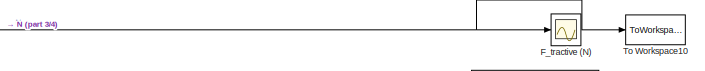
[diagram: root canvas - part 1/4, top right region]
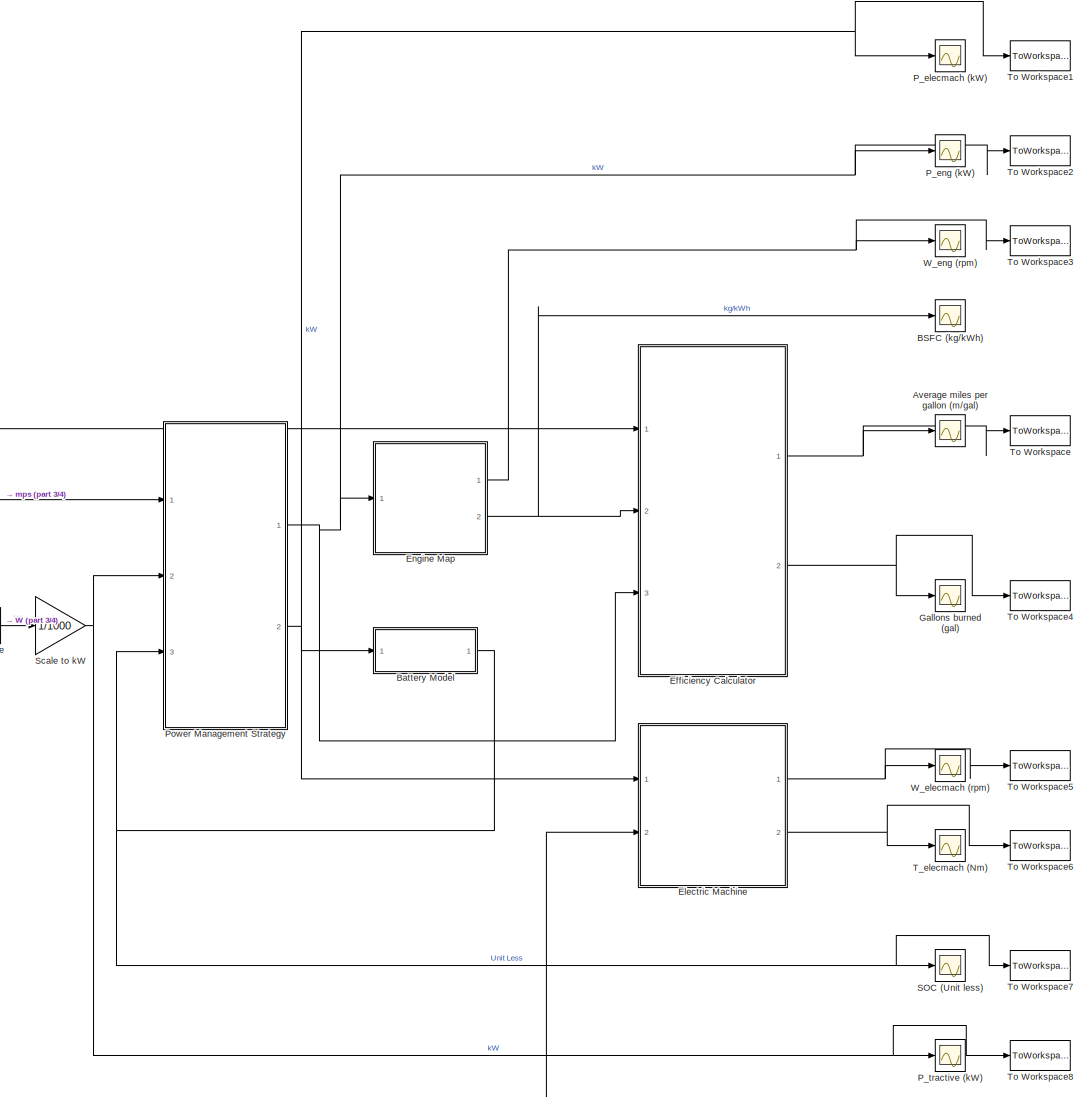
[diagram: root canvas - part 2/4, right side, full height]
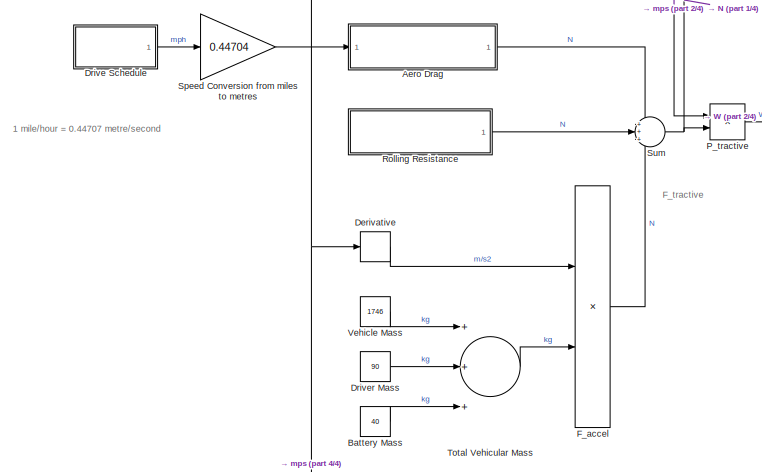
[diagram: root canvas - part 3/4, middle left region]
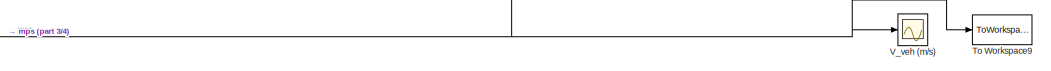
[diagram: root canvas - part 4/4, bottom right region]
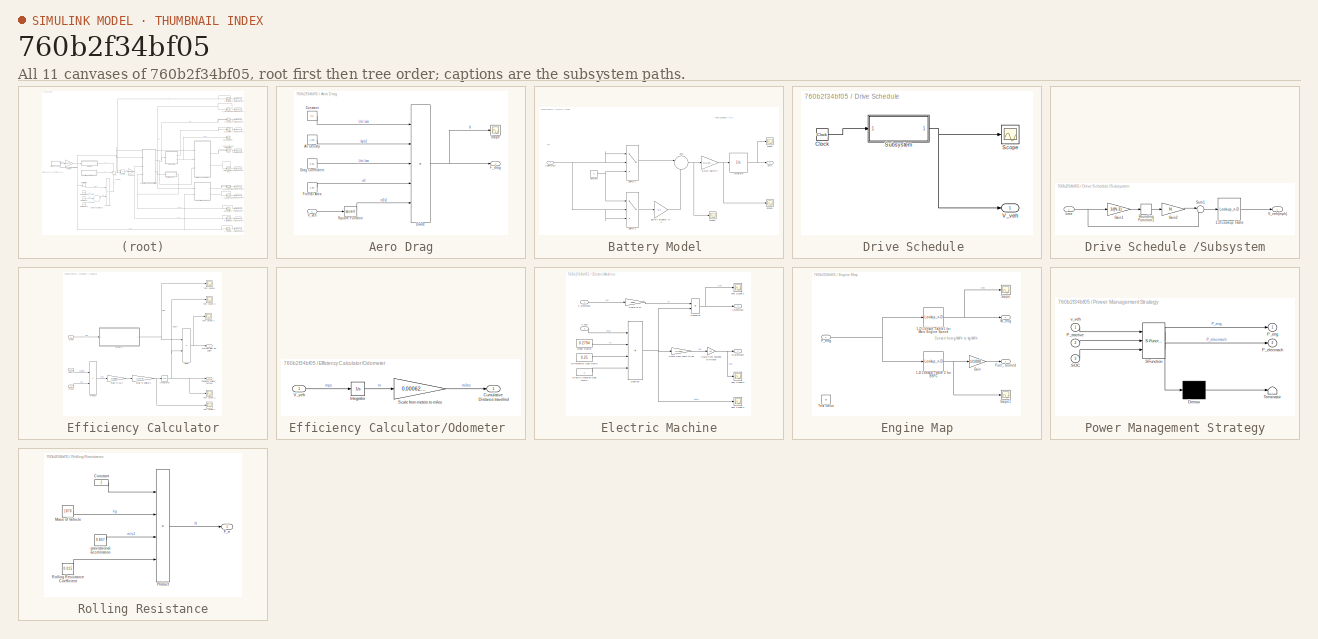
[diagram: thumbnail index - all 11 canvases of the model, root first then tree order]
MODEL slx_760b2f34bf05
KIND model
CONFIG AbsTol = auto
CONFIG FixedStep = 0.1
CONFIG MaxStep = auto
CONFIG MinStep = auto
CONFIG RelTol = 1e-3
CONFIG SampleTimeConstraint = Unconstrained
CONFIG Solver = ode1
CONFIG SolverMode = Auto
CONFIG SolverName = ode1
CONFIG StartTime = 0.0
CONFIG StopTime = 1200
BLOCK [SubSystem] Aero Drag
  Ports = [1, 1]
  RequestExecContextInheritance = off
  Variant = off
BLOCK [Constant] Aero Drag/Air Density
  Value = 1.225
BLOCK [Constant] Aero Drag/Constant
  Value = 0.5
BLOCK [Product] Aero Drag/Divide
  InputSameDT = off
  Inputs = *****
  OutDataTypeStr = Inherit: Inherit via internal rule
  Ports = [5, 1]
  RndMeth = Floor
  SaturateOnIntegerOverflow = off
BLOCK [Constant] Aero Drag/Drag Coefficient
  Value = 0.35
BLOCK [Outport] Aero Drag/F_drag 
  IconDisplay = Port number
BLOCK [Constant] Aero Drag/Frontal Area
  Value = 1.93
BLOCK [Scope] Aero Drag/Scope
  Ports = [1]
  ScopeSpecificationString = Simulink.scopes.TimeScopeBlockCfg('CurrentConfiguration', extmgr.ConfigurationSet(extmgr.Configuration('Core','General UI',true),extmgr.Configuration('Core','Source UI',true),extmgr.Configuration('Sources','WiredSimulink',true,'DataLoggingVariableName','ScopeData1'),extmgr.Configuration('Visuals','Time Domain',true,'SerializedDisplays',{struct('MinYLimReal','-1.85654','MaxYLimReal','16.70882','YLa...<+1398ch>
BLOCK [Math] Aero Drag/Square Function
  Operator = square
  Ports = [1, 1]
BLOCK [Inport] Aero Drag/V_veh
  IconDisplay = Port number
BLOCK [Scope] Average miles per gallon (m//gal)
  Ports = [1]
  ScopeSpecificationString = Simulink.scopes.TimeScopeBlockCfg('CurrentConfiguration', extmgr.ConfigurationSet(extmgr.Configuration('Core','General UI',true),extmgr.Configuration('Core','Source UI',true),extmgr.Configuration('Sources','WiredSimulink',true,'DataLoggingVariableName','ScopeData1','DataLoggingSaveFormat','Structure','DataLoggingDecimation','1'),extmgr.Configuration('Visuals','Time Domain',true,'SerializedDisplays...<+1502ch>
BLOCK [Scope] BSFC (kg//kWh)
  Ports = [1]
  ScopeSpecificationString = Simulink.scopes.TimeScopeBlockCfg('CurrentConfiguration', extmgr.ConfigurationSet(extmgr.Configuration('Core','General UI',true),extmgr.Configuration('Core','Source UI',true),extmgr.Configuration('Sources','WiredSimulink',true,'DataLoggingVariableName','ScopeData4'),extmgr.Configuration('Visuals','Time Domain',true,'SerializedDisplays',{struct('MinYLimReal','0.20688','MaxYLimReal','0.68812','YLabe...<+1415ch>
BLOCK [Constant] Battery Mass
  Value = 40
BLOCK [SubSystem] Battery Model 
  Ports = [1, 1]
  RequestExecContextInheritance = off
  Variant = off
BLOCK [Gain] Battery Model /Battery Efficiency (0 - 1)
  Gain = 0.7
  OutDataTypeStr = Inherit: Inherit via internal rule
  ParamDataTypeStr = Inherit: Inherit via internal rule
  SaturateOnIntegerOverflow = off
BLOCK [Constant] Battery Model /Constant
  Value = 0
BLOCK [Gain] Battery Model /E_max (Battery)
  Gain = 1/(1.8*3600)
  OutDataTypeStr = Inherit: Inherit via internal rule
  ParamDataTypeStr = Inherit: Inherit via internal rule
  SaturateOnIntegerOverflow = off
BLOCK [Integrator] Battery Model /Integrator
  InitialCondition = 0.6
  Ports = [1, 1]
BLOCK [Inport] Battery Model /P_elecmach
  IconDisplay = Port number
BLOCK [Outport] Battery Model /SOC
  IconDisplay = Port number
BLOCK [Scope] Battery Model /Scope
  Ports = [1]
  ScopeSpecificationString = Simulink.scopes.TimeScopeBlockCfg('CurrentConfiguration', extmgr.ConfigurationSet(extmgr.Configuration('Core','General UI',true),extmgr.Configuration('Core','Source UI',true),extmgr.Configuration('Sources','WiredSimulink',true,'DataLoggingVariableName','ScopeData2','DataLoggingLimitDataPoints',true,'DataLoggingSaveFormat','Array','DataLoggingDecimation','1','DataLoggingDecimateData',true),extmgr.C...<+1519ch>
BLOCK [Scope] Battery Model /Scope1
  Ports = [1]
  ScopeSpecificationString = Simulink.scopes.TimeScopeBlockCfg('CurrentConfiguration', extmgr.ConfigurationSet(extmgr.Configuration('Core','General UI',true),extmgr.Configuration('Core','Source UI',true),extmgr.Configuration('Sources','WiredSimulink',true,'DataLoggingVariableName','ScopeData4','DataLoggingLimitDataPoints',true,'DataLoggingSaveFormat','Array','DataLoggingDecimation','1','DataLoggingDecimateData',true),extmgr.C...<+1529ch>
BLOCK [Scope] Battery Model /Scope2
  Ports = [1]
  ScopeSpecificationString = Simulink.scopes.TimeScopeBlockCfg('CurrentConfiguration', extmgr.ConfigurationSet(extmgr.Configuration('Core','General UI',true),extmgr.Configuration('Core','Source UI',true),extmgr.Configuration('Sources','WiredSimulink',true,'DataLoggingVariableName','ScopeData1','DataLoggingLimitDataPoints',true,'DataLoggingSaveFormat','Array','DataLoggingDecimation','1','DataLoggingDecimateData',true),extmgr.C...<+1520ch>
BLOCK [Sum] Battery Model /Sum
  IconShape = round
  InputSameDT = off
  Inputs = |--
  OutDataTypeStr = Inherit: Inherit via internal rule
  Ports = [2, 1]
  SaturateOnIntegerOverflow = off
BLOCK [Switch] Battery Model /Switch 1
  Criteria = u2 > Threshold
  InputSameDT = off
  SaturateOnIntegerOverflow = off
BLOCK [Switch] Battery Model /Switch 2
  Criteria = u2 > Threshold
  InputSameDT = off
  SaturateOnIntegerOverflow = off
BLOCK [Derivative] Derivative
BLOCK [SubSystem] Drive Schedule 
  Ports = [0, 1]
  RequestExecContextInheritance = off
  Variant = off
BLOCK [Clock] Drive Schedule /Clock
BLOCK [Scope] Drive Schedule /Scope
  Ports = [1]
  ScopeSpecificationString = Simulink.scopes.TimeScopeBlockCfg('CurrentConfiguration', extmgr.ConfigurationSet(extmgr.Configuration('Core','General UI',true),extmgr.Configuration('Core','Source UI',true),extmgr.Configuration('Sources','WiredSimulink',true),extmgr.Configuration('Visuals','Time Domain',true,'SerializedDisplays',{struct('MinYLimReal','-10.0375','MaxYLimReal','90.3375','YLabelReal','','MinYLimMag','0.00000','MaxY...<+1381ch>
BLOCK [SubSystem] Drive Schedule /Subsystem
  Ports = [1, 1]
  RequestExecContextInheritance = off
  Variant = off
BLOCK [Lookup_n-D] Drive Schedule /Subsystem/1-D Lookup Table
  BreakpointsForDimension1 = schedule(:,1)
  InternalRulePriority = Speed
  NumberOfTableDimensions = 1
  Ports = [1, 1]
  RndMeth = Simplest
  Table = schedule(:,2)
BLOCK [Gain] Drive Schedule /Subsystem/Gain1
  Gain = 1/(N-1)
  OutDataTypeStr = Inherit: Inherit via internal rule
  ParamDataTypeStr = Inherit: Inherit via internal rule
  SaturateOnIntegerOverflow = off
BLOCK [Gain] Drive Schedule /Subsystem/Gain2
  Gain = N
  OutDataTypeStr = Inherit: Inherit via internal rule
  ParamDataTypeStr = Inherit: Inherit via internal rule
  SaturateOnIntegerOverflow = off
BLOCK [Rounding] Drive Schedule /Subsystem/Rounding Function1
BLOCK [Sum] Drive Schedule /Subsystem/Sum1
  IconShape = round
  InputSameDT = off
  Inputs = |-+
  OutDataTypeStr = Inherit: Inherit via internal rule
  Ports = [2, 1]
  SaturateOnIntegerOverflow = off
BLOCK [Outport] Drive Schedule /Subsystem/V_veh(mph)
  IconDisplay = Port number
BLOCK [Inport] Drive Schedule /Subsystem/time
  IconDisplay = Port number
BLOCK [Outport] Drive Schedule /V_veh 
  IconDisplay = Port number
BLOCK [Constant] Driver Mass
  Value = 90
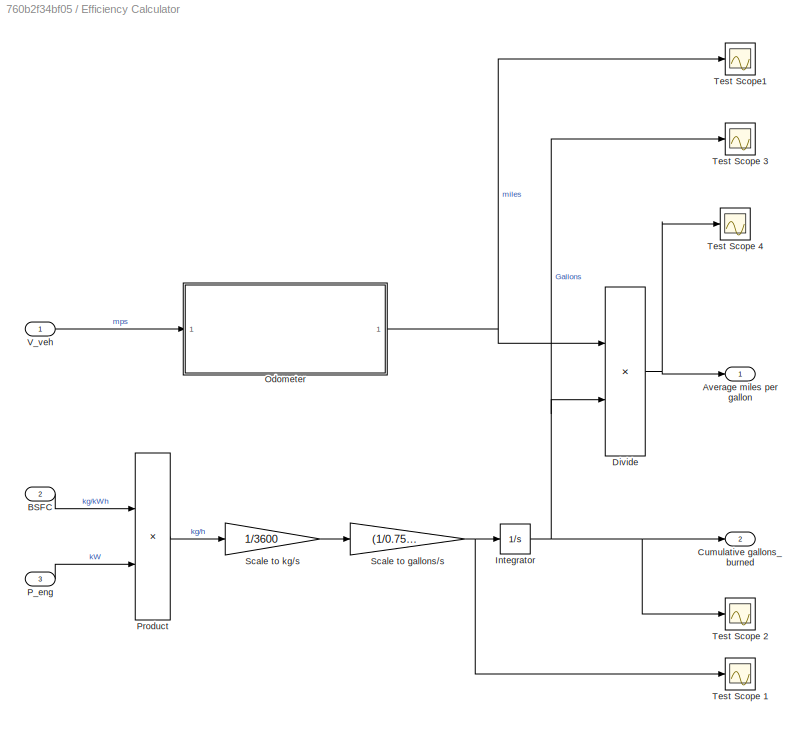
BLOCK [SubSystem] Efficiency Calculator
  Ports = [3, 2]
  RequestExecContextInheritance = off
  Variant = off
BLOCK [Outport] Efficiency Calculator/Average miles per gallon
  IconDisplay = Port number
BLOCK [Inport] Efficiency Calculator/BSFC
  IconDisplay = Port number
  Port = 2
BLOCK [Outport] Efficiency Calculator/Cumulative gallons_burned
  IconDisplay = Port number
  Port = 2
BLOCK [Product] Efficiency Calculator/Divide
  InputSameDT = off
  Inputs = */
  OutDataTypeStr = Inherit: Inherit via internal rule
  Ports = [2, 1]
  RndMeth = Floor
  SaturateOnIntegerOverflow = off
BLOCK [Integrator] Efficiency Calculator/Integrator
  InitialCondition = 0.001
  Ports = [1, 1]
BLOCK [SubSystem] Efficiency Calculator/Odometer 
  Ports = [1, 1]
  RequestExecContextInheritance = off
  ShowPortLabels = SignalName
  Variant = off
BLOCK [Outport] Efficiency Calculator/Odometer /Cumulative Distance travelled
  IconDisplay = Port number
BLOCK [Integrator] Efficiency Calculator/Odometer /Integrator
  InitialCondition = 0.001
  Ports = [1, 1]
BLOCK [Gain] Efficiency Calculator/Odometer /Scale from meters to miles
  Gain = 0.00062137
  OutDataTypeStr = Inherit: Inherit via internal rule
  ParamDataTypeStr = Inherit: Inherit via internal rule
  SaturateOnIntegerOverflow = off
BLOCK [Inport] Efficiency Calculator/Odometer /V_veh
  IconDisplay = Port number
BLOCK [Inport] Efficiency Calculator/P_eng 
  IconDisplay = Port number
  Port = 3
BLOCK [Product] Efficiency Calculator/Product
  InputSameDT = off
  OutDataTypeStr = Inherit: Inherit via internal rule
  Ports = [2, 1]
  RndMeth = Floor
  SaturateOnIntegerOverflow = off
BLOCK [Gain] Efficiency Calculator/Scale to gallons//s
  Gain = (1/0.75)*0.264
  OutDataTypeStr = Inherit: Inherit via internal rule
  ParamDataTypeStr = Inherit: Inherit via internal rule
  SaturateOnIntegerOverflow = off
BLOCK [Gain] Efficiency Calculator/Scale to kg//s
  Gain = 1/3600
  OutDataTypeStr = Inherit: Inherit via internal rule
  ParamDataTypeStr = Inherit: Inherit via internal rule
  SaturateOnIntegerOverflow = off
BLOCK [Scope] Efficiency Calculator/Test Scope 1
  Ports = [1]
  ScopeSpecificationString = Simulink.scopes.TimeScopeBlockCfg('CurrentConfiguration', extmgr.ConfigurationSet(extmgr.Configuration('Core','General UI',true),extmgr.Configuration('Core','Source UI',true),extmgr.Configuration('Sources','WiredSimulink',true,'DataLoggingVariableName','ScopeData2'),extmgr.Configuration('Visuals','Time Domain',true,'SerializedDisplays',{struct('MinYLimReal','-0.00026','MaxYLimReal','0.0023','YLabe...<+1402ch>
BLOCK [Scope] Efficiency Calculator/Test Scope 2
  Ports = [1]
  ScopeSpecificationString = Simulink.scopes.TimeScopeBlockCfg('CurrentConfiguration', extmgr.ConfigurationSet(extmgr.Configuration('Core','General UI',true),extmgr.Configuration('Core','Source UI',true),extmgr.Configuration('Sources','WiredSimulink',true,'DataLoggingVariableName','ScopeData3'),extmgr.Configuration('Visuals','Time Domain',true,'SerializedDisplays',{struct('MinYLimReal','-0.03419','MaxYLimReal','0.31774','YLab...<+1393ch>
BLOCK [Scope] Efficiency Calculator/Test Scope 3
  Ports = [1]
  ScopeSpecificationString = Simulink.scopes.TimeScopeBlockCfg('CurrentConfiguration', extmgr.ConfigurationSet(extmgr.Configuration('Core','General UI',true),extmgr.Configuration('Core','Source UI',true),extmgr.Configuration('Sources','WiredSimulink',true,'DataLoggingVariableName','ScopeData1'),extmgr.Configuration('Visuals','Time Domain',true,'SerializedDisplays',{struct('MinYLimReal','-0.31351','MaxYLimReal','2.83161','YLab...<+1366ch>
BLOCK [Scope] Efficiency Calculator/Test Scope 4
  Ports = [1]
  ScopeSpecificationString = Simulink.scopes.TimeScopeBlockCfg('CurrentConfiguration', extmgr.ConfigurationSet(extmgr.Configuration('Core','General UI',true,'DisplayFullSourceName',true),extmgr.Configuration('Core','Source UI',true),extmgr.Configuration('Sources','WiredSimulink',true,'DataLoggingVariableName','mpg','DataLoggingSaveFormat','StructureWithTime'),extmgr.Configuration('Visuals','Time Domain',true,'SerializedDispla...<+1462ch>
BLOCK [Scope] Efficiency Calculator/Test Scope1
  Ports = [1]
  ScopeSpecificationString = Simulink.scopes.TimeScopeBlockCfg('CurrentConfiguration', extmgr.ConfigurationSet(extmgr.Configuration('Core','General UI',true),extmgr.Configuration('Core','Source UI',true),extmgr.Configuration('Sources','WiredSimulink',true,'DataLoggingVariableName','ScopeData2'),extmgr.Configuration('Visuals','Time Domain',true,'SerializedDisplays',{struct('MinYLimReal','-10.00921','MaxYLimReal','90.08286','YL...<+1399ch>
BLOCK [Inport] Efficiency Calculator/V_veh 
  IconDisplay = Port number
BLOCK [SubSystem] Electric Machine
  Ports = [2, 2]
  RequestExecContextInheritance = off
  Variant = off
BLOCK [Product] Electric Machine/Converter
  InputSameDT = off
  Inputs = */
  OutDataTypeStr = Inherit: Inherit via internal rule
  Ports = [2, 1]
  RndMeth = Floor
  SaturateOnIntegerOverflow = off
BLOCK [Constant] Electric Machine/Differential Gear Ratio
  Value = 0.25
BLOCK [Constant] Electric Machine/Electric Machine Gear Ratio
BLOCK [Product] Electric Machine/Gearing
  InputSameDT = off
  Inputs = *///
  OutDataTypeStr = Inherit: Inherit via internal rule
  Ports = [4, 1]
  RndMeth = Floor
  SaturateOnIntegerOverflow = off
BLOCK [Inport] Electric Machine/P_elecmach
  IconDisplay = Port number
BLOCK [Gain] Electric Machine/Scale from rad//s to rps
  Gain = 1/(2*pi)
  OutDataTypeStr = Inherit: Inherit via internal rule
  ParamDataTypeStr = Inherit: Inherit via internal rule
  SaturateOnIntegerOverflow = off
BLOCK [Gain] Electric Machine/Scale from seconds to minute
  Gain = 60
  OutDataTypeStr = Inherit: Inherit via internal rule
  ParamDataTypeStr = Inherit: Inherit via internal rule
  SaturateOnIntegerOverflow = off
BLOCK [Gain] Electric Machine/Scale to W
  Gain = 1000
  OutDataTypeStr = Inherit: Inherit via internal rule
  ParamDataTypeStr = Inherit: Inherit via internal rule
  SaturateOnIntegerOverflow = off
BLOCK [Outport] Electric Machine/T_elecmach
  IconDisplay = Port number
  Port = 2
BLOCK [Scope] Electric Machine/Test Scope 1
  Ports = [1]
  ScopeSpecificationString = Simulink.scopes.TimeScopeBlockCfg('CurrentConfiguration', extmgr.ConfigurationSet(extmgr.Configuration('Core','General UI',true),extmgr.Configuration('Core','Source UI',true),extmgr.Configuration('Sources','WiredSimulink',true,'DataLoggingVariableName','ScopeData1'),extmgr.Configuration('Visuals','Time Domain',true,'SerializedDisplays',{struct('MinYLimReal','-493.73675','MaxYLimReal','623.13091','...<+1375ch>
BLOCK [Scope] Electric Machine/Test Scope 2
  Ports = [1]
  ScopeSpecificationString = Simulink.scopes.TimeScopeBlockCfg('CurrentConfiguration', extmgr.ConfigurationSet(extmgr.Configuration('Core','General UI',true),extmgr.Configuration('Core','Source UI',true),extmgr.Configuration('Sources','WiredSimulink',true,'DataLoggingVariableName','ScopeData1'),extmgr.Configuration('Visuals','Time Domain',true,'SerializedDisplays',{struct('MinYLimReal','-45.36','MaxYLimReal','408.24','YLabelR...<+1356ch>
BLOCK [Scope] Electric Machine/Test Scope 3
  Ports = [1]
  ScopeSpecificationString = Simulink.scopes.TimeScopeBlockCfg('CurrentConfiguration', extmgr.ConfigurationSet(extmgr.Configuration('Core','General UI',true),extmgr.Configuration('Core','Source UI',true),extmgr.Configuration('Sources','WiredSimulink',true,'DataLoggingVariableName','ScopeData1'),extmgr.Configuration('Visuals','Time Domain',true,'SerializedDisplays',{struct('MinYLimReal','-433.15609','MaxYLimReal','3898.40484',...<+1407ch>
BLOCK [Inport] Electric Machine/V_veh 
  IconDisplay = Port number
  Port = 2
BLOCK [Outport] Electric Machine/W_elecmach
  IconDisplay = Port number
BLOCK [Constant] Electric Machine/Wheel Radius
  Value = 0.2794
BLOCK [SubSystem] Engine Map
  Ports = [1, 2]
  RequestExecContextInheritance = off
  Variant = off
BLOCK [Lookup_n-D] Engine Map/1-D Lookup Table 2 for BSFC 
  BreakpointsForDimension1 = [7,12,24,35,47,57,77,82,85]
  BreakpointsForDimension2 = [7,12,24,35,47]
  InternalRulePriority = Speed
  NumberOfTableDimensions = 1
  Ports = [1, 1]
  RndMeth = Simplest
  Table = [500,400,320,285,265,255,255,265,285]
BLOCK [Lookup_n-D] Engine Map/1-D Lookup Table1 for Main Engine Speed
  BreakpointsForDimension1 = [7,12,24,35,47,57,77,82,85]
  BreakpointsForDimension2 = [7,12,24,35,47]
  InternalRulePriority = Speed
  NumberOfTableDimensions = 1
  Ports = [1, 1]
  RndMeth = Simplest
  Table = [1009,1183,1588,1936,2318,2612,3371,3685,4014]
BLOCK [Outport] Engine Map/Fuel_ burned
  IconDisplay = Port number
  Port = 2
BLOCK [Gain] Engine Map/Gain
  Gain = 1/1000
  OutDataTypeStr = Inherit: Inherit via internal rule
  ParamDataTypeStr = Inherit: Inherit via internal rule
  SaturateOnIntegerOverflow = off
BLOCK [Inport] Engine Map/P_eng
  IconDisplay = Port number
BLOCK [Scope] Engine Map/Scope
  Ports = [1]
  ScopeSpecificationString = Simulink.scopes.TimeScopeBlockCfg('CurrentConfiguration', extmgr.ConfigurationSet(extmgr.Configuration('Core','General UI',true),extmgr.Configuration('Core','Source UI',true),extmgr.Configuration('Sources','WiredSimulink',true,'DataLoggingVariableName','ScopeData1'),extmgr.Configuration('Visuals','Time Domain',true,'SerializedDisplays',{struct('MinYLimReal','665.4','MaxYLimReal','865.4','YLabelRea...<+1397ch>
BLOCK [Scope] Engine Map/Scope1
  Ports = [1]
  ScopeSpecificationString = Simulink.scopes.TimeScopeBlockCfg('CurrentConfiguration', extmgr.ConfigurationSet(extmgr.Configuration('Core','General UI',true),extmgr.Configuration('Core','Source UI',true),extmgr.Configuration('Sources','WiredSimulink',true,'DataLoggingVariableName','ScopeData2'),extmgr.Configuration('Visuals','Time Domain',true,'SerializedDisplays',{struct('MinYLimReal','540.00000','MaxYLimReal','740.00000','Y...<+1430ch>
BLOCK [Constant] Engine Map/Test Value
  Commented = on
  Value = 30
BLOCK [Outport] Engine Map/W_eng
  IconDisplay = Port number
BLOCK [Product] F_accel
  InputSameDT = off
  OutDataTypeStr = Inherit: Inherit via internal rule
  Ports = [2, 1]
  RndMeth = Floor
  SaturateOnIntegerOverflow = off
BLOCK [Scope] F_tractive (N)
  Ports = [1]
  ScopeSpecificationString = C++SS(StrPVP('SaveName','ScopeData4'),StrPVP('LimitDataPoints','on'),StrPVP('DataFormat','Array'),StrPVP('Decimation','1'),StrPVP('BlockParamSampleInput','off'))
BLOCK [Scope] Gallons burned (gal)
  Ports = [1]
  ScopeSpecificationString = Simulink.scopes.TimeScopeBlockCfg('CurrentConfiguration', extmgr.ConfigurationSet(extmgr.Configuration('Core','General UI',true),extmgr.Configuration('Core','Source UI',true),extmgr.Configuration('Sources','WiredSimulink',true,'DataLoggingVariableName','ScopeData2','DataLoggingLimitDataPoints',true,'DataLoggingSaveFormat','Array','DataLoggingDecimation','1','DataLoggingDecimateData',true),extmgr.C...<+1563ch>
BLOCK [Scope] P_elecmach (kW)
  Ports = [1]
  ScopeSpecificationString = Simulink.scopes.TimeScopeBlockCfg('CurrentConfiguration', extmgr.ConfigurationSet(extmgr.Configuration('Core','General UI',true),extmgr.Configuration('Core','Source UI',true),extmgr.Configuration('Sources','WiredSimulink',true,'DataLoggingVariableName','ScopeData3','DataLoggingLimitDataPoints',true,'DataLoggingSaveFormat','Array','DataLoggingDecimation','1','DataLoggingDecimateData',true),extmgr.C...<+1571ch>
BLOCK [Scope] P_eng (kW)
  Ports = [1]
  ScopeSpecificationString = Simulink.scopes.TimeScopeBlockCfg('CurrentConfiguration', extmgr.ConfigurationSet(extmgr.Configuration('Core','General UI',true),extmgr.Configuration('Core','Source UI',true),extmgr.Configuration('Sources','WiredSimulink',true,'DataLoggingVariableName','ScopeData1'),extmgr.Configuration('Visuals','Time Domain',true,'SerializedDisplays',{struct('MinYLimReal','-10.00000','MaxYLimReal','90.00000','YL...<+1419ch>
BLOCK [Product] P_tractive
  InputSameDT = off
  Inputs = **
  OutDataTypeStr = Inherit: Inherit via internal rule
  Ports = [2, 1]
  RndMeth = Floor
  SaturateOnIntegerOverflow = off
BLOCK [Scope] P_tractive (kW)
  Ports = [1]
  ScopeSpecificationString = Simulink.scopes.TimeScopeBlockCfg('CurrentConfiguration', extmgr.ConfigurationSet(extmgr.Configuration('Core','General UI',true),extmgr.Configuration('Core','Source UI',true),extmgr.Configuration('Sources','WiredSimulink',true,'DataLoggingVariableName','ScopeData1'),extmgr.Configuration('Visuals','Time Domain',true,'SerializedDisplays',{struct('MinYLimReal','-91.16897','MaxYLimReal','124.30488','Y...<+1396ch>
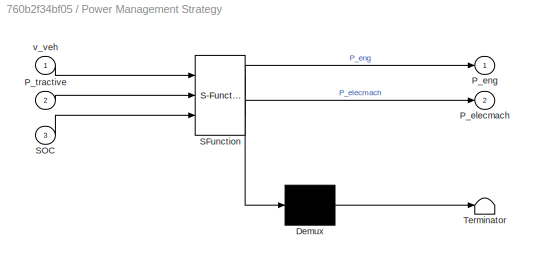
BLOCK [SubSystem] Power Management Strategy
  ErrorFcn = Stateflow.Translate.translate
  PermitHierarchicalResolution = ExplicitOnly
  Ports = [3, 2]
  RequestExecContextInheritance = off
  SFBlockType = MATLAB Function
  TreatAsAtomicUnit = on
  Variant = off
BLOCK [Demux] Power Management Strategy/ Demux 
  Outputs = 1
  Ports = [1, 1]
BLOCK [S-Function] Power Management Strategy/ SFunction 
  EnableBusSupport = on
  FunctionName = sf_sfun
  PortCounts = [3 3]
  Ports = [3, 3]
  SFunctionDeploymentMode = off
  Tag = Stateflow S-Function Simulation_Block_Diagram_Ver2_UDDS 2
BLOCK [Terminator] Power Management Strategy/ Terminator 
BLOCK [Outport] Power Management Strategy/P_elecmach
  IconDisplay = Port number
  Port = 2
BLOCK [Outport] Power Management Strategy/P_eng
  IconDisplay = Port number
BLOCK [Inport] Power Management Strategy/P_tractive
  IconDisplay = Port number
  Port = 2
BLOCK [Inport] Power Management Strategy/SOC
  IconDisplay = Port number
  Port = 3
BLOCK [Inport] Power Management Strategy/v_veh
  IconDisplay = Port number
BLOCK [SubSystem] Rolling Resistance
  Ports = [0, 1]
  RequestExecContextInheritance = off
  Variant = off
BLOCK [Constant] Rolling Resistance/Constant
BLOCK [Outport] Rolling Resistance/F_rr 
  IconDisplay = Port number
BLOCK [Constant] Rolling Resistance/Mass of Vehicle
  Value = 1876
BLOCK [Product] Rolling Resistance/Product 
  InputSameDT = off
  Inputs = ****
  OutDataTypeStr = Inherit: Inherit via internal rule
  Ports = [4, 1]
  RndMeth = Floor
  SaturateOnIntegerOverflow = off
BLOCK [Constant] Rolling Resistance/Rolling Resistance Coefficient
  Value = 0.015
BLOCK [Constant] Rolling Resistance/gravitational acceleration 
  Value = 9.807
BLOCK [Scope] SOC (Unit less)
  Ports = [1]
  ScopeSpecificationString = Simulink.scopes.TimeScopeBlockCfg('CurrentConfiguration', extmgr.ConfigurationSet(extmgr.Configuration('Core','General UI',true),extmgr.Configuration('Core','Source UI',true),extmgr.Configuration('Sources','WiredSimulink',true,'DataLoggingVariableName','ScopeData5','DataLoggingLimitDataPoints',true,'DataLoggingSaveFormat','Array','DataLoggingDecimation','1','DataLoggingDecimateData',true),extmgr.C...<+1521ch>
BLOCK [Gain] Scale to kW
  Gain = 1/1000
  OutDataTypeStr = Inherit: Inherit via internal rule
  ParamDataTypeStr = Inherit: Inherit via internal rule
  SaturateOnIntegerOverflow = off
BLOCK [Gain] Speed Conversion from miles to metres
  Gain = 0.44704
  OutDataTypeStr = Inherit: Inherit via internal rule
  ParamDataTypeStr = Inherit: Inherit via internal rule
  SaturateOnIntegerOverflow = off
BLOCK [Sum] Sum
  IconShape = round
  InputSameDT = off
  Inputs = +++
  OutDataTypeStr = Inherit: Inherit via internal rule
  Ports = [3, 1]
  SaturateOnIntegerOverflow = off
BLOCK [Scope] T_elecmach (Nm)
  Ports = [1]
  ScopeSpecificationString = Simulink.scopes.TimeScopeBlockCfg('CurrentConfiguration', extmgr.ConfigurationSet(extmgr.Configuration('Core','General UI',true),extmgr.Configuration('Core','Source UI',true),extmgr.Configuration('Sources','WiredSimulink',true,'DataLoggingVariableName','ScopeData3','DataLoggingLimitDataPoints',true,'DataLoggingSaveFormat','Array','DataLoggingDecimation','1','DataLoggingDecimateData',true),extmgr.C...<+1569ch>
BLOCK [ToWorkspace] To Workspace
  FixptAsFi = on
  MaxDataPoints = inf
  Ports = [1]
  SampleTime = -1
  Save2DSignal = 3-D array (concatenate along third dimension)
  SaveFormat = Timeseries
  VariableName = mpg
BLOCK [ToWorkspace] To Workspace1
  FixptAsFi = on
  MaxDataPoints = inf
  Ports = [1]
  SampleTime = -1
  Save2DSignal = 3-D array (concatenate along third dimension)
  SaveFormat = Timeseries
  VariableName = P_elecmach
BLOCK [ToWorkspace] To Workspace10
  FixptAsFi = on
  MaxDataPoints = inf
  Ports = [1]
  SampleTime = -1
  Save2DSignal = 3-D array (concatenate along third dimension)
  SaveFormat = Timeseries
  VariableName = F_tractive
BLOCK [ToWorkspace] To Workspace2
  FixptAsFi = on
  MaxDataPoints = inf
  Ports = [1]
  SampleTime = -1
  Save2DSignal = 3-D array (concatenate along third dimension)
  SaveFormat = Timeseries
  VariableName = P_eng
BLOCK [ToWorkspace] To Workspace3
  FixptAsFi = on
  MaxDataPoints = inf
  Ports = [1]
  SampleTime = -1
  Save2DSignal = 3-D array (concatenate along third dimension)
  SaveFormat = Timeseries
  VariableName = W_eng
BLOCK [ToWorkspace] To Workspace4
  FixptAsFi = on
  MaxDataPoints = inf
  Ports = [1]
  SampleTime = -1
  Save2DSignal = 3-D array (concatenate along third dimension)
  SaveFormat = Timeseries
  VariableName = Gallons
BLOCK [ToWorkspace] To Workspace5
  FixptAsFi = on
  MaxDataPoints = inf
  Ports = [1]
  SampleTime = -1
  Save2DSignal = 3-D array (concatenate along third dimension)
  SaveFormat = Timeseries
  VariableName = W_elecmach
BLOCK [ToWorkspace] To Workspace6
  FixptAsFi = on
  MaxDataPoints = inf
  Ports = [1]
  SampleTime = -1
  Save2DSignal = 3-D array (concatenate along third dimension)
  SaveFormat = Timeseries
  VariableName = T_elecmach
BLOCK [ToWorkspace] To Workspace7
  FixptAsFi = on
  MaxDataPoints = inf
  Ports = [1]
  SampleTime = -1
  Save2DSignal = 3-D array (concatenate along third dimension)
  SaveFormat = Timeseries
  VariableName = SOC
BLOCK [ToWorkspace] To Workspace8
  FixptAsFi = on
  MaxDataPoints = inf
  Ports = [1]
  SampleTime = -1
  Save2DSignal = 3-D array (concatenate along third dimension)
  SaveFormat = Timeseries
  VariableName = P_tractive
BLOCK [ToWorkspace] To Workspace9
  FixptAsFi = on
  MaxDataPoints = inf
  Ports = [1]
  SampleTime = -1
  Save2DSignal = 3-D array (concatenate along third dimension)
  SaveFormat = Timeseries
  VariableName = V_veh
BLOCK [Sum] Total Vehicular Mass
  InputSameDT = off
  Inputs = +++
  OutDataTypeStr = Inherit: Inherit via internal rule
  Ports = [3, 1]
  SaturateOnIntegerOverflow = off
BLOCK [Scope] V_veh (m//s)
  Ports = [1]
  ScopeSpecificationString = Simulink.scopes.TimeScopeBlockCfg('CurrentConfiguration', extmgr.ConfigurationSet(extmgr.Configuration('Core','General UI',true),extmgr.Configuration('Core','Source UI',true),extmgr.Configuration('Sources','WiredSimulink',true,'DataLoggingVariableName','ScopeData2','DataLoggingLimitDataPoints',true,'DataLoggingSaveFormat','Array','DataLoggingDecimation','1','DataLoggingDecimateData',true),extmgr.C...<+1587ch>
BLOCK [Constant] Vehicle Mass
  Value = 1746
BLOCK [Scope] W_elecmach (rpm)
  Ports = [1]
  ScopeSpecificationString = Simulink.scopes.TimeScopeBlockCfg('CurrentConfiguration', extmgr.ConfigurationSet(extmgr.Configuration('Core','General UI',true),extmgr.Configuration('Core','Source UI',true),extmgr.Configuration('Sources','WiredSimulink',true,'DataLoggingVariableName','ScopeData2','DataLoggingLimitDataPoints',true,'DataLoggingSaveFormat','Array','DataLoggingDecimation','1','DataLoggingDecimateData',true),extmgr.C...<+1530ch>
BLOCK [Scope] W_eng (rpm) 
  Ports = [1]
  ScopeSpecificationString = Simulink.scopes.TimeScopeBlockCfg('CurrentConfiguration', extmgr.ConfigurationSet(extmgr.Configuration('Core','General UI',true),extmgr.Configuration('Core','Source UI',true),extmgr.Configuration('Sources','WiredSimulink',true,'DataLoggingVariableName','W_eng','DataLoggingSaveFormat','StructureWithTime'),extmgr.Configuration('Visuals','Time Domain',true,'SerializedDisplays',{struct('MinYLimReal','...<+1435ch>
ANNOTATION (root): 1 mile/hour = 0.44707 metre/second
ANNOTATION (root): F_tractive
ANNOTATION Battery Model : Initial Condition = 0.6
ANNOTATION Battery Model : kW
ANNOTATION Engine Map: Convert from g/kWh to kg/kWh
LINE Aero Drag/Air Density:1 -> Aero Drag/Divide:2
LINE Aero Drag/Constant:1 -> Aero Drag/Divide:1
NET Aero Drag/Divide:1 -> Aero Drag/F_drag :1, Aero Drag/Scope:1
LINE Aero Drag/Drag Coefficient:1 -> Aero Drag/Divide:3
LINE Aero Drag/Frontal Area:1 -> Aero Drag/Divide:4
LINE Aero Drag/Square Function:1 -> Aero Drag/Divide:5
LINE Aero Drag/V_veh:1 -> Aero Drag/Square Function:1
LINE Aero Drag:1 -> Sum:1
LINE Battery Mass:1 -> Total Vehicular Mass:3
LINE Battery Model /Battery Efficiency (0 - 1):1 -> Battery Model /Sum:2
NET Battery Model /Constant:1 -> Battery Model /Switch 1:3, Battery Model /Switch 2:1
NET Battery Model /E_max (Battery):1 -> Battery Model /Integrator:1, Battery Model /Scope1:1
NET Battery Model /Integrator:1 -> Battery Model /SOC:1, Battery Model /Scope:1
NET Battery Model /P_elecmach:1 -> Battery Model /Switch 1:1, Battery Model /Switch 1:2, Battery Model /Switch 2:2, Battery Model /Switch 2:3
NET Battery Model /Sum:1 -> Battery Model /E_max (Battery):1, Battery Model /Scope2:1
LINE Battery Model /Switch 1:1 -> Battery Model /Sum:1
LINE Battery Model /Switch 2:1 -> Battery Model /Battery Efficiency (0 - 1):1
NET Battery Model :1 -> Power Management Strategy:3, SOC (Unit less):1, To Workspace7:1
LINE Derivative:1 -> F_accel:1
LINE Drive Schedule /Clock:1 -> Drive Schedule /Subsystem:1
LINE Drive Schedule /Subsystem/1-D Lookup Table:1 -> Drive Schedule /Subsystem/V_veh(mph):1
LINE Drive Schedule /Subsystem/Gain1:1 -> Drive Schedule /Subsystem/Rounding Function1:1
LINE Drive Schedule /Subsystem/Gain2:1 -> Drive Schedule /Subsystem/Sum1:1
LINE Drive Schedule /Subsystem/Rounding Function1:1 -> Drive Schedule /Subsystem/Gain2:1
LINE Drive Schedule /Subsystem/Sum1:1 -> Drive Schedule /Subsystem/1-D Lookup Table:1
NET Drive Schedule /Subsystem/time:1 -> Drive Schedule /Subsystem/Gain1:1, Drive Schedule /Subsystem/Sum1:2
NET Drive Schedule /Subsystem:1 -> Drive Schedule /Scope:1, Drive Schedule /V_veh :1
LINE Drive Schedule :1 -> Speed Conversion from miles to metres:1
LINE Driver Mass:1 -> Total Vehicular Mass:2
LINE Efficiency Calculator/BSFC:1 -> Efficiency Calculator/Product:1
NET Efficiency Calculator/Divide:1 -> Efficiency Calculator/Average miles per gallon:1, Efficiency Calculator/Test Scope 4:1
NET Efficiency Calculator/Integrator:1 -> Efficiency Calculator/Cumulative gallons_burned:1, Efficiency Calculator/Divide:2, Efficiency Calculator/Test Scope 2:1, Efficiency Calculator/Test Scope 3:1
LINE Efficiency Calculator/Odometer /Integrator:1 -> Efficiency Calculator/Odometer /Scale from meters to miles:1
LINE Efficiency Calculator/Odometer /Scale from meters to miles:1 -> Efficiency Calculator/Odometer /Cumulative Distance travelled:1
LINE Efficiency Calculator/Odometer /V_veh:1 -> Efficiency Calculator/Odometer /Integrator:1
NET Efficiency Calculator/Odometer :1 -> Efficiency Calculator/Divide:1, Efficiency Calculator/Test Scope1:1
LINE Efficiency Calculator/P_eng :1 -> Efficiency Calculator/Product:2
LINE Efficiency Calculator/Product:1 -> Efficiency Calculator/Scale to kg//s:1
NET Efficiency Calculator/Scale to gallons//s:1 -> Efficiency Calculator/Integrator:1, Efficiency Calculator/Test Scope 1:1
LINE Efficiency Calculator/Scale to kg//s:1 -> Efficiency Calculator/Scale to gallons//s:1
LINE Efficiency Calculator/V_veh :1 -> Efficiency Calculator/Odometer :1
NET Efficiency Calculator:1 -> Average miles per gallon (m//gal):1, To Workspace:1
NET Efficiency Calculator:2 -> Gallons burned (gal):1, To Workspace4:1
NET Electric Machine/Converter:1 -> Electric Machine/T_elecmach:1, Electric Machine/Test Scope 1:1
LINE Electric Machine/Differential Gear Ratio:1 -> Electric Machine/Gearing:3
LINE Electric Machine/Electric Machine Gear Ratio:1 -> Electric Machine/Gearing:4
NET Electric Machine/Gearing:1 -> Electric Machine/Converter:2, Electric Machine/Scale from rad//s to rps:1, Electric Machine/Test Scope 2:1
LINE Electric Machine/P_elecmach:1 -> Electric Machine/Scale to W:1
LINE Electric Machine/Scale from rad//s to rps:1 -> Electric Machine/Scale from seconds to minute:1
NET Electric Machine/Scale from seconds to minute:1 -> Electric Machine/Test Scope 3:1, Electric Machine/W_elecmach:1
LINE Electric Machine/Scale to W:1 -> Electric Machine/Converter:1
LINE Electric Machine/V_veh :1 -> Electric Machine/Gearing:1
LINE Electric Machine/Wheel Radius:1 -> Electric Machine/Gearing:2
NET Electric Machine:1 -> To Workspace5:1, W_elecmach (rpm):1
NET Electric Machine:2 -> T_elecmach (Nm):1, To Workspace6:1
NET Engine Map/1-D Lookup Table 2 for BSFC :1 -> Engine Map/Gain:1, Engine Map/Scope1:1
NET Engine Map/1-D Lookup Table1 for Main Engine Speed:1 -> Engine Map/Scope:1, Engine Map/W_eng:1
LINE Engine Map/Gain:1 -> Engine Map/Fuel_ burned:1
NET Engine Map/P_eng:1 -> Engine Map/1-D Lookup Table 2 for BSFC :1, Engine Map/1-D Lookup Table1 for Main Engine Speed:1
NET Engine Map:1 -> To Workspace3:1, W_eng (rpm) :1
NET Engine Map:2 -> BSFC (kg//kWh):1, Efficiency Calculator:2
LINE F_accel:1 -> Sum:3
LINE P_tractive:1 -> Scale to kW:1
NET Power Management Strategy:1 -> Efficiency Calculator:3, Engine Map:1, P_eng (kW):1, To Workspace2:1
NET Power Management Strategy:2 -> Battery Model :1, Electric Machine:1, P_elecmach (kW):1, To Workspace1:1
LINE Rolling Resistance/Constant:1 -> Rolling Resistance/Product :1
LINE Rolling Resistance/Mass of Vehicle:1 -> Rolling Resistance/Product :2
LINE Rolling Resistance/Product :1 -> Rolling Resistance/F_rr :1
LINE Rolling Resistance/Rolling Resistance Coefficient:1 -> Rolling Resistance/Product :4
LINE Rolling Resistance/gravitational acceleration :1 -> Rolling Resistance/Product :3
LINE Rolling Resistance:1 -> Sum:2
NET Scale to kW:1 -> P_tractive (kW):1, Power Management Strategy:2, To Workspace8:1
NET Speed Conversion from miles to metres:1 -> Aero Drag:1, Derivative:1, Efficiency Calculator:1, Electric Machine:2, P_tractive:1, Power Management Strategy:1, To Workspace9:1, V_veh (m//s):1
NET Sum:1 -> F_tractive (N):1, P_tractive:2, To Workspace10:1
LINE Total Vehicular Mass:1 -> F_accel:2
LINE Vehicle Mass:1 -> Total Vehicular Mass:1
note: NET lines group one-source signal fan-out (src -> all destinations, sorted); 1:1 wires keep LINE
CHART Power Management Strategy states=1 transitions=1
  STATE_LABEL 'eML_blk_kernel()'
  STATE_LABEL 'SCRIPT:\nfunction [P_eng, P_elecmach] = fcn(v_veh, P_tractive, SOC)\n\n%define variables\nP_eng_min = 10;      %kW\nP_eng_max = 80;      %kW\n\nR_wheel = 0.2794;       %m\nG_diff = 0.25;          %Unit less\nG_trans_min = 0.3;      %Unit less\nW_eng_min = 16.6667;        %revolutions per second\nScale = 1;\n\n% The first thing to check is whether the W_eng (Engine Speed) is below \n% its minimum level. The mini...<+1218ch>'
